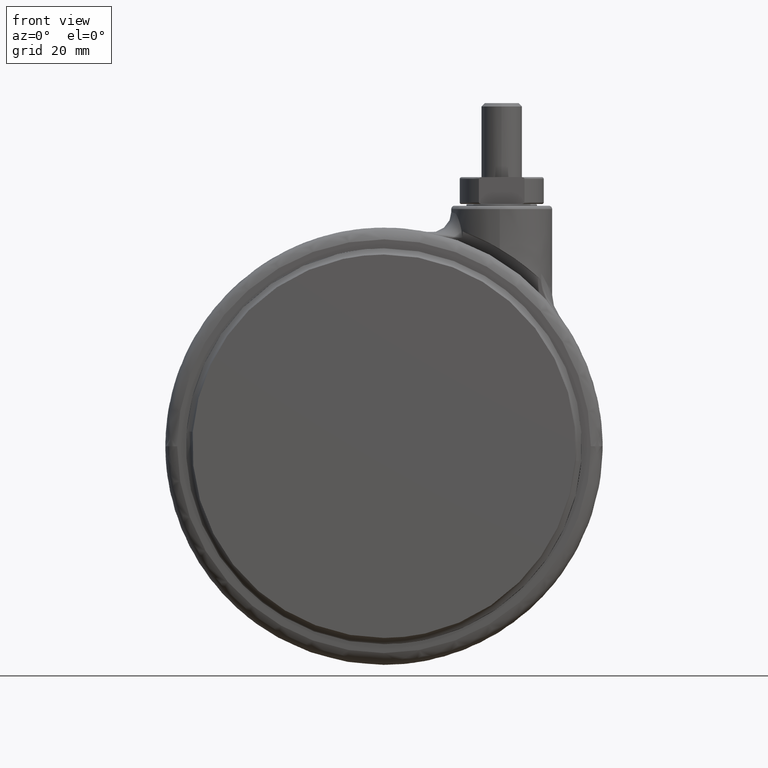
[diagram: clean part render]
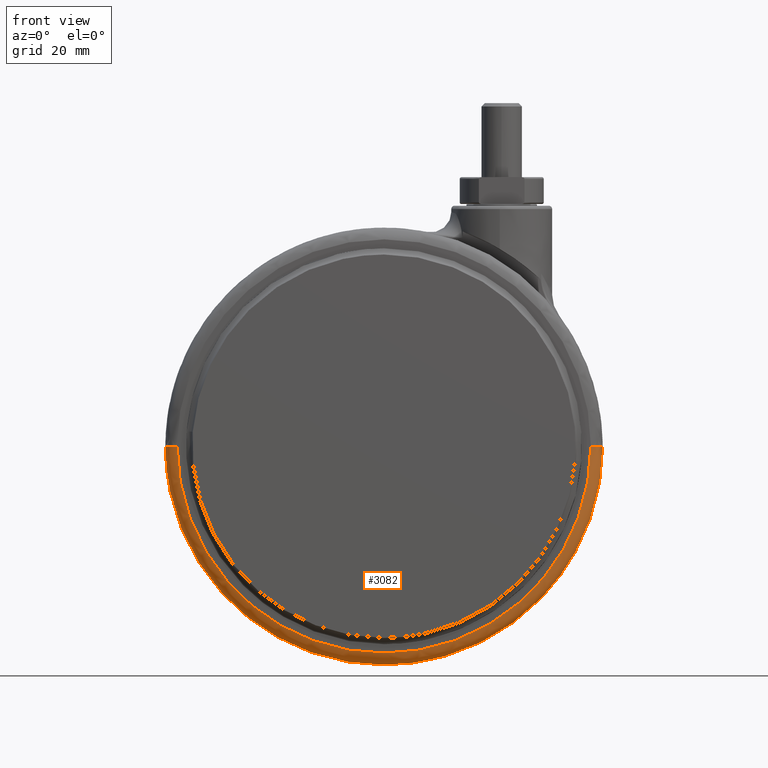
[diagram: same view with one face highlighted and labeled with its STEP entity id]
A machine part, front view. The second image highlights one B-rep face of the part: STEP entity #3082.
In plain terms, the highlighted face is a freeform B-spline surface patch.
Its self-contained STEP definition (entity closure, byte-faithful):
#2750=CARTESIAN_POINT('',(29.999999999999989,-19.500000000630781,-71.500000000000000));
#2751=VERTEX_POINT('',#2750);
#2765=CARTESIAN_POINT('',(12.149334952521480,-19.500000000327109,-116.243046538372100));
#2766=VERTEX_POINT('',#2765);
#2767=CARTESIAN_POINT('',(29.999999999999989,-19.500000000630781,-71.500000000000000));
#2768=CARTESIAN_POINT('',(29.999999999999989,-19.500000000504961,-97.432369783783571));
#2769=CARTESIAN_POINT('',(12.149334952521471,-19.500000000327070,-116.243046538372160));
#2777=(BOUNDED_CURVE()B_SPLINE_CURVE(2,(#2767,#2768,#2769),.UNSPECIFIED.,.F.,.U.)B_SPLINE_CURVE_WITH_KNOTS((3,3),(0.250000000000000,0.371049523836886),.UNSPECIFIED.)CURVE()GEOMETRIC_REPRESENTATION_ITEM()RATIONAL_B_SPLINE_CURVE((1.0,0.858181661310315,0.853699661578427))REPRESENTATION_ITEM(''));
#2778=EDGE_CURVE('',#2751,#2766,#2777,.T.);
#2814=CARTESIAN_POINT('',(-99.999999999999986,-19.500000000630781,-71.500000000000000));
#2815=VERTEX_POINT('',#2814);
#2834=CARTESIAN_POINT('',(-35.0,-19.500000000000000,-136.500000000000000));
#2835=VERTEX_POINT('',#2834);
#2836=CARTESIAN_POINT('',(12.149334952521471,-19.500000000327070,-116.243046538372160));
#2837=CARTESIAN_POINT('',(-7.073795392200023,-19.500000000135497,-136.499999999999970));
#2838=CARTESIAN_POINT('',(-35.0,-19.500000000000000,-136.500000000000000));
#2846=(BOUNDED_CURVE()B_SPLINE_CURVE(2,(#2836,#2837,#2838),.UNSPECIFIED.,.F.,.U.)B_SPLINE_CURVE_WITH_KNOTS((3,3),(0.371049523836886,0.500000000000000),.UNSPECIFIED.)CURVE()GEOMETRIC_REPRESENTATION_ITEM()RATIONAL_B_SPLINE_CURVE((0.853699661578427,0.848925119876232,1.0))REPRESENTATION_ITEM(''));
#2847=EDGE_CURVE('',#2766,#2835,#2846,.T.);
#2849=CARTESIAN_POINT('',(-35.0,-19.500000000000000,-136.500000000000000));
#2850=CARTESIAN_POINT('',(-99.999999999999986,-19.500000000315392,-136.500000000000000));
#2851=CARTESIAN_POINT('',(-99.999999999999986,-19.500000000630781,-71.500000000000000));
#2859=(BOUNDED_CURVE()B_SPLINE_CURVE(2,(#2849,#2850,#2851),.UNSPECIFIED.,.F.,.U.)B_SPLINE_CURVE_WITH_KNOTS((3,3),(0.500000000000000,0.750000000000000),.UNSPECIFIED.)CURVE()GEOMETRIC_REPRESENTATION_ITEM()RATIONAL_B_SPLINE_CURVE((1.0,0.707106781186547,1.0))REPRESENTATION_ITEM(''));
#2860=EDGE_CURVE('',#2835,#2815,#2859,.T.);
#2962=CARTESIAN_POINT('',(-96.500000001819814,-23.0,-71.500000000000000));
#2963=VERTEX_POINT('',#2962);
#2964=CARTESIAN_POINT('',(-96.500000001819799,-23.000000000000004,-71.500000000000014));
#2965=CARTESIAN_POINT('',(-99.999999999369194,-22.999999998180179,-71.500000000000000));
#2966=CARTESIAN_POINT('',(-99.999999999999986,-19.500000000630781,-71.500000000000014));
#2974=(BOUNDED_CURVE()B_SPLINE_CURVE(2,(#2964,#2965,#2966),.UNSPECIFIED.,.F.,.U.)B_SPLINE_CURVE_WITH_KNOTS((3,3),(-1.736413120534040,-0.276558718200788),.UNSPECIFIED.)CURVE()GEOMETRIC_REPRESENTATION_ITEM()RATIONAL_B_SPLINE_CURVE((0.888510408869488,0.626638727365656,0.883897567073266))REPRESENTATION_ITEM(''));
#2975=EDGE_CURVE('',#2963,#2815,#2974,.T.);
#2992=CARTESIAN_POINT('',(26.500000001819821,-23.0,-71.500000000000000));
#2993=VERTEX_POINT('',#2992);
#3007=CARTESIAN_POINT('',(26.500000001819817,-23.0,-71.500000000000000));
#3008=CARTESIAN_POINT('',(29.999999999369198,-22.999999998180161,-71.500000000000000));
#3009=CARTESIAN_POINT('',(29.999999999999982,-19.500000000630784,-71.500000000000000));
#3017=(BOUNDED_CURVE()B_SPLINE_CURVE(2,(#3007,#3008,#3009),.UNSPECIFIED.,.F.,.U.)B_SPLINE_CURVE_WITH_KNOTS((3,3),(-1.736413120534035,-0.276558718200787),.UNSPECIFIED.)CURVE()GEOMETRIC_REPRESENTATION_ITEM()RATIONAL_B_SPLINE_CURVE((0.888510408869487,0.626638727365656,0.883897567073266))REPRESENTATION_ITEM(''));
#3018=EDGE_CURVE('',#2993,#2751,#3017,.T.);
#3024=CARTESIAN_POINT('',(26.257272985873676,-22.991573226586166,-71.500000000000000));
#3025=CARTESIAN_POINT('',(26.257272985873684,-22.991573226586162,-132.757272985873700));
#3026=CARTESIAN_POINT('',(-35.0,-22.991573226586166,-132.757272985873670));
#3027=CARTESIAN_POINT('',(-96.257272985873655,-22.991573226586162,-132.757272985873700));
#3028=CARTESIAN_POINT('',(-96.257272985873669,-22.991573226586166,-71.500000000000014));
#3029=CARTESIAN_POINT('',(30.272087451719866,-23.270674899191995,-71.500000000000000));
#3030=CARTESIAN_POINT('',(30.272087451719873,-23.270674899191988,-136.772087451719870));
#3031=CARTESIAN_POINT('',(-35.0,-23.270674899191995,-136.772087451719840));
#3032=CARTESIAN_POINT('',(-100.272087451719860,-23.270674899191988,-136.772087451719870));
#3033=CARTESIAN_POINT('',(-100.272087451719860,-23.270674899191995,-71.500000000000014));
#3034=CARTESIAN_POINT('',(29.991482069457387,-19.255965251127197,-71.500000000000000));
#3035=CARTESIAN_POINT('',(29.991482069457383,-19.255965251127197,-136.491482069457390));
#3036=CARTESIAN_POINT('',(-34.999999999999993,-19.255965251127197,-136.491482069457310));
#3037=CARTESIAN_POINT('',(-99.991482069457376,-19.255965251127197,-136.491482069457390));
#3038=CARTESIAN_POINT('',(-99.991482069457362,-19.255965251127197,-71.500000000000014));
#3046=(BOUNDED_SURFACE()B_SPLINE_SURFACE(2,2,((#3024,#3029,#3034),(#3025,#3030,#3035),(#3026,#3031,#3036),(#3027,#3032,#3037),(#3028,#3033,#3038)),.UNSPECIFIED.,.F.,.F.,.U.)B_SPLINE_SURFACE_WITH_KNOTS((3,2,3),(3,3),(0.0,107.681413247588200,215.362826495176510),(0.0,6.378296268782360),.UNSPECIFIED.)GEOMETRIC_REPRESENTATION_ITEM()RATIONAL_B_SPLINE_SURFACE(((0.915966621911565,0.599412927647948,0.910892953526734),(0.647686209694202,0.423848945870745,0.644098584373797),(0.915966621911565,0.599412927647948,0.910892953526734),(0.647686209694202,0.423848945870745,0.644098584373797),(0.915966621911565,0.599412927647948,0.910892953526734)))REPRESENTATION_ITEM('')SURFACE());
#3047=ORIENTED_EDGE('',*,*,#2860,.F.);
#3048=ORIENTED_EDGE('',*,*,#2847,.F.);
#3049=ORIENTED_EDGE('',*,*,#2778,.F.);
#3050=ORIENTED_EDGE('',*,*,#3018,.F.);
#3051=CARTESIAN_POINT('',(-35.0,-23.0,-133.0));
#3052=VERTEX_POINT('',#3051);
#3053=CARTESIAN_POINT('',(26.500000001819821,-23.0,-71.500000000000000));
#3054=CARTESIAN_POINT('',(26.500000000909917,-22.999999999999993,-133.0));
#3055=CARTESIAN_POINT('',(-35.0,-23.0,-133.0));
#3063=(BOUNDED_CURVE()B_SPLINE_CURVE(2,(#3053,#3054,#3055),.UNSPECIFIED.,.F.,.U.)B_SPLINE_CURVE_WITH_KNOTS((3,3),(0.250000000000000,0.500000000000000),.UNSPECIFIED.)CURVE()GEOMETRIC_REPRESENTATION_ITEM()RATIONAL_B_SPLINE_CURVE((1.0,0.707106781186548,1.0))REPRESENTATION_ITEM(''));
#3064=EDGE_CURVE('',#2993,#3052,#3063,.T.);
#3065=ORIENTED_EDGE('',*,*,#3064,.T.);
#3066=CARTESIAN_POINT('',(-35.0,-23.0,-133.0));
#3067=CARTESIAN_POINT('',(-96.500000000909907,-22.999999999999993,-133.0));
#3068=CARTESIAN_POINT('',(-96.500000001819814,-23.0,-71.500000000000000));
#3076=(BOUNDED_CURVE()B_SPLINE_CURVE(2,(#3066,#3067,#3068),.UNSPECIFIED.,.F.,.U.)B_SPLINE_CURVE_WITH_KNOTS((3,3),(0.500000000000000,0.750000000000000),.UNSPECIFIED.)CURVE()GEOMETRIC_REPRESENTATION_ITEM()RATIONAL_B_SPLINE_CURVE((1.0,0.707106781186548,1.0))REPRESENTATION_ITEM(''));
#3077=EDGE_CURVE('',#3052,#2963,#3076,.T.);
#3078=ORIENTED_EDGE('',*,*,#3077,.T.);
#3079=ORIENTED_EDGE('',*,*,#2975,.T.);
#3080=EDGE_LOOP('',(#3047,#3048,#3049,#3050,#3065,#3078,#3079));
#3081=FACE_OUTER_BOUND('',#3080,.T.);
#3082=ADVANCED_FACE('',(#3081),#3046,.T.);